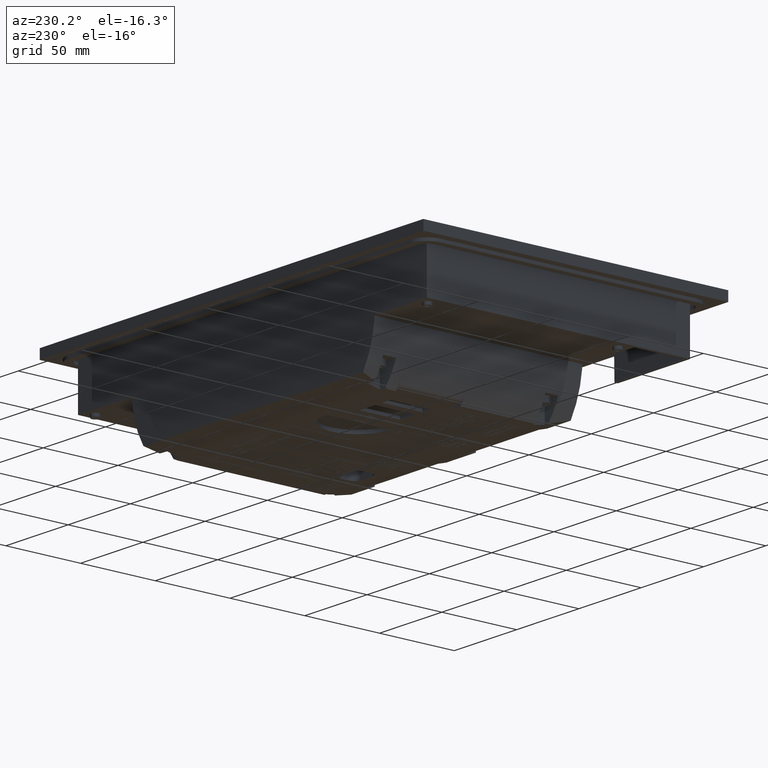
[diagram: clean part render]
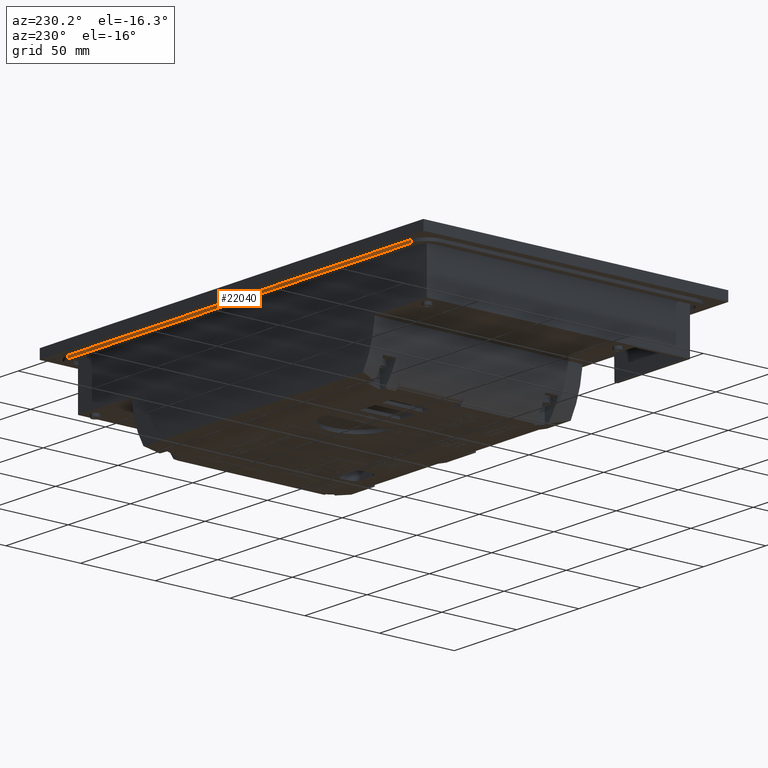
[diagram: same view with one face highlighted and labeled with its STEP entity id]
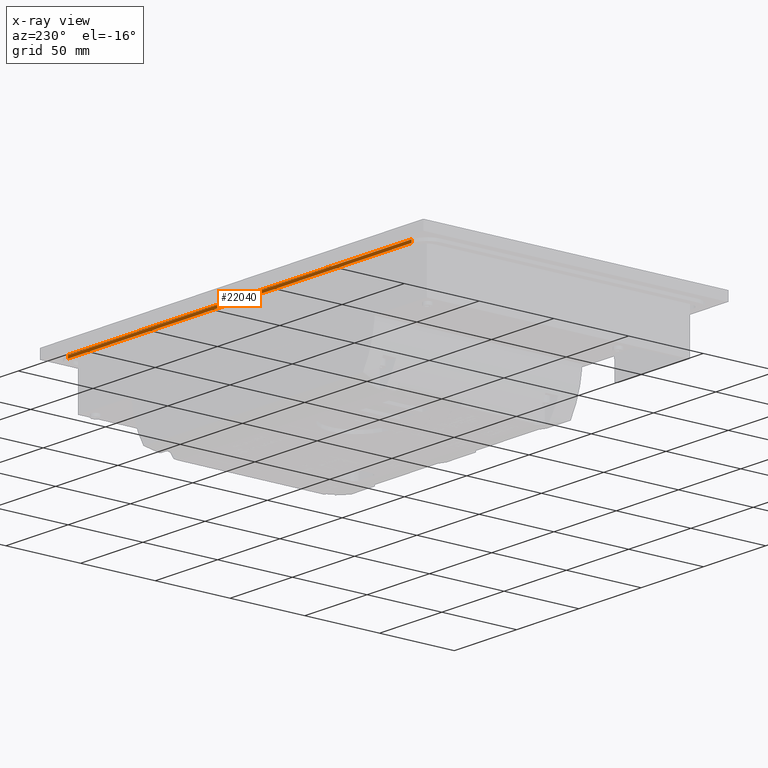
[diagram: x-ray of the same camera — body ghosted, the highlighted face saturated]
A machine part, auxiliary view. The second image highlights one B-rep face of the part: STEP entity #22040.
The next image is the same camera in x-ray: the body ghosted, the highlighted face saturated — about 0% of this face is hidden behind the body in this view.
In plain terms, the highlighted planar face has unit normal (0, 1, 0).
Its self-contained STEP definition (entity closure, byte-faithful):
#5760=LINE('',#87076,#12547);
#5761=LINE('',#87078,#12548);
#5762=LINE('',#87080,#12549);
#5763=LINE('',#87082,#12550);
#12547=VECTOR('',#70160,1.);
#12548=VECTOR('',#70163,1.);
#12549=VECTOR('',#70164,1.);
#12550=VECTOR('',#70165,1.);
#18659=FACE_OUTER_BOUND('',#30151,.T.);
#22040=ADVANCED_FACE('',(#18659),#25312,.T.);
#25312=PLANE('',#63780);
#30151=EDGE_LOOP('',(#37273,#37274,#37275,#37276));
#37273=ORIENTED_EDGE('',*,*,#56524,.F.);
#37274=ORIENTED_EDGE('',*,*,#56523,.F.);
#37275=ORIENTED_EDGE('',*,*,#56525,.T.);
#37276=ORIENTED_EDGE('',*,*,#56526,.T.);
#50411=VERTEX_POINT('',#87073);
#50412=VERTEX_POINT('',#87075);
#50413=VERTEX_POINT('',#87079);
#50414=VERTEX_POINT('',#87081);
#56523=EDGE_CURVE('',#50412,#50411,#5760,.T.);
#56524=EDGE_CURVE('',#50411,#50413,#5761,.T.);
#56525=EDGE_CURVE('',#50412,#50414,#5762,.T.);
#56526=EDGE_CURVE('',#50414,#50413,#5763,.T.);
#63780=AXIS2_PLACEMENT_3D('',#87083,#70166,#70167);
#70160=DIRECTION('',(0.,0.,1.));
#70163=DIRECTION('',(-1.,0.,0.));
#70164=DIRECTION('',(-1.,0.,0.));
#70165=DIRECTION('',(0.,0.,1.));
#70166=DIRECTION('',(0.,1.,0.));
#70167=DIRECTION('',(0.,0.,1.));
#87073=CARTESIAN_POINT('',(138.,96.5,-6.));
#87075=CARTESIAN_POINT('',(138.,96.5,-8.));
#87076=CARTESIAN_POINT('',(138.,96.5,-8.));
#87078=CARTESIAN_POINT('',(138.,96.5,-6.));
#87079=CARTESIAN_POINT('',(-138.,96.5,-6.));
#87080=CARTESIAN_POINT('',(138.,96.5,-8.));
#87081=CARTESIAN_POINT('',(-138.,96.5,-8.));
#87082=CARTESIAN_POINT('',(-138.,96.5,-8.));
#87083=CARTESIAN_POINT('',(138.,96.5,-8.));